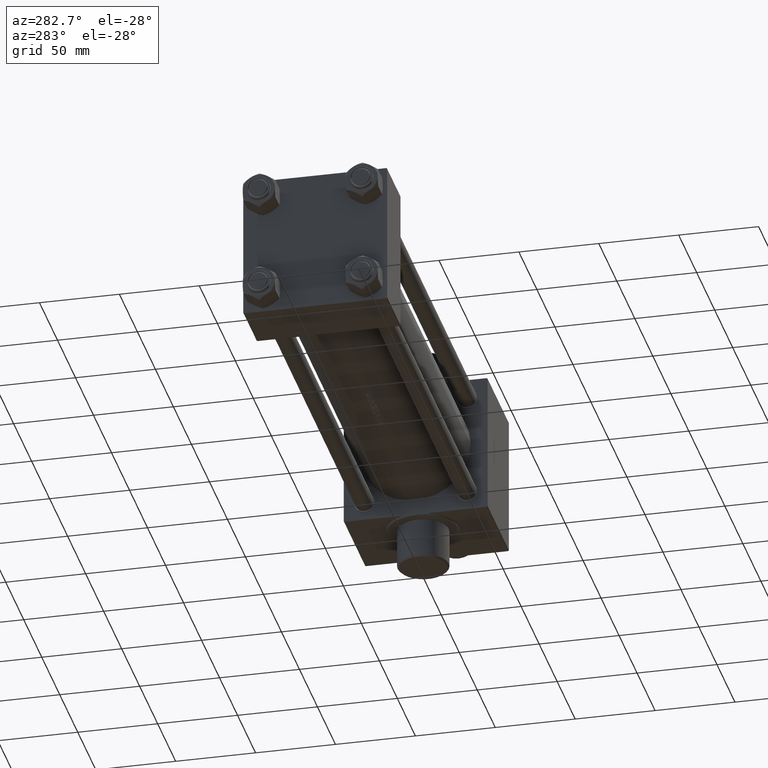
[diagram: clean part render]
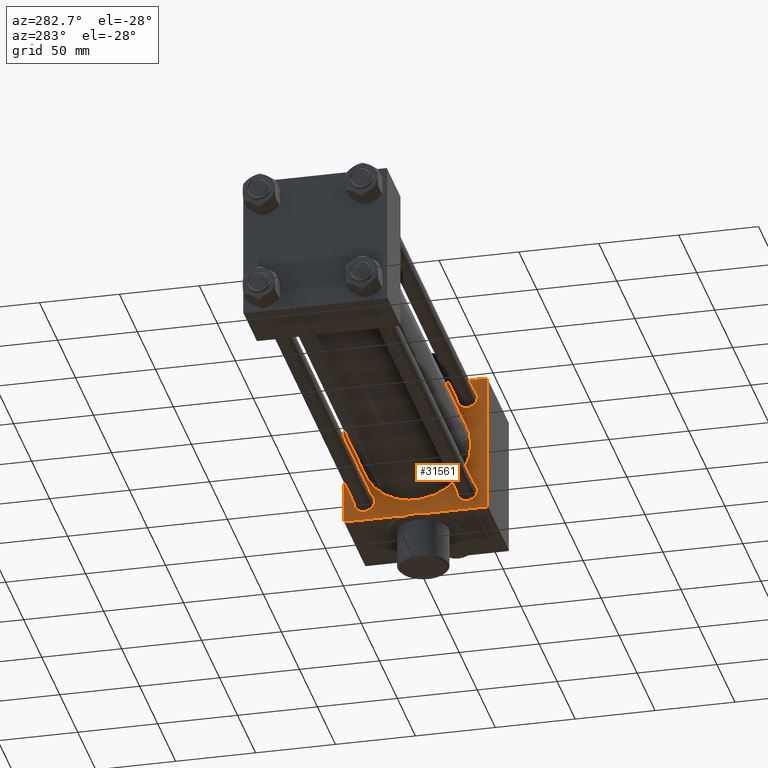
[diagram: same view with one face highlighted and labeled with its STEP entity id]
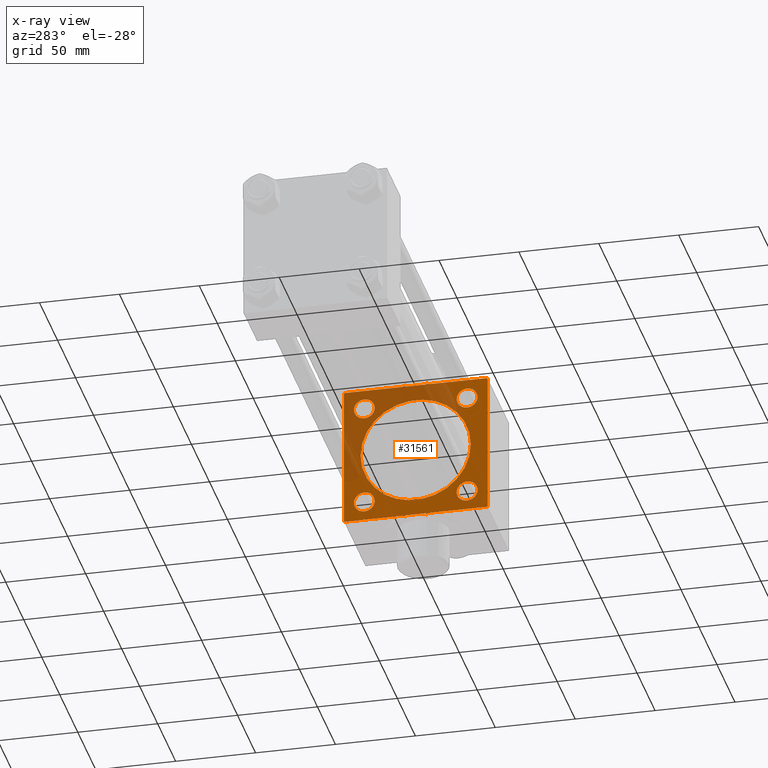
[diagram: x-ray of the same camera — body ghosted, the highlighted face saturated]
A machine part, auxiliary view. The second image highlights one B-rep face of the part: STEP entity #31561.
The next image is the same camera in x-ray: the body ghosted, the highlighted face saturated — about 36% of this face is hidden behind the body in this view.
In plain terms, the highlighted planar face has unit normal (-1, 0, -0).
Its self-contained STEP definition (entity closure, byte-faithful):
#37 = VERTEX_POINT ( 'NONE', #5837 ) ;
#326 = DIRECTION ( 'NONE',  ( 0.000000000000000000, 0.000000000000000000, -1.000000000000000000 ) ) ;
#445 = ORIENTED_EDGE ( 'NONE', *, *, #42361, .T. ) ;
#618 = DIRECTION ( 'NONE',  ( 1.000000000000000000, -0.000000000000000000, 0.000000000000000000 ) ) ;
#850 = VECTOR ( 'NONE', #15854, 1000.000000000000000 ) ;
#1042 = CARTESIAN_POINT ( 'NONE',  ( 278.9999999999998863, 45.36865640296358038, 6.581045208820103909 ) ) ;
#1112 = EDGE_CURVE ( 'NONE', #5918, #2435, #24346, .T. ) ;
#1119 = VERTEX_POINT ( 'NONE', #9830 ) ;
#1140 = CARTESIAN_POINT ( 'NONE',  ( 278.9999999999999432, -3.469446951953614189E-15, 0.000000000000000000 ) ) ;
#1150 = VERTEX_POINT ( 'NONE', #6245 ) ;
#1161 = CARTESIAN_POINT ( 'NONE',  ( 278.9999999999999432, 45.50000000000000000, -6.557438524301979932 ) ) ;
#1234 = ORIENTED_EDGE ( 'NONE', *, *, #36797, .T. ) ;
#1264 = CARTESIAN_POINT ( 'NONE',  ( 278.9999999999999432, 45.36808282792672031, -6.581323621460090756 ) ) ;
#1278 = CARTESIAN_POINT ( 'NONE',  ( 279.0000000000000000, 44.75568168226515553, 7.575263360223996933 ) ) ;
#1376 = B_SPLINE_CURVE_WITH_KNOTS ( 'NONE', 3,
 ( #29278, #14056, #3572, #14514, #40431, #32835, #10499, #7844, #14759, #10722, #43530, #7147, #21666, #36169 ),
 .UNSPECIFIED., .F., .F.,
 ( 4, 2, 2, 2, 2, 2, 4 ),
 ( 0.000000000000000000, 0.0001986455132052242819, 0.0003972910264104485638, 0.0007945820528208971277, 0.001589164105641785148, 0.002383746158462673060, 0.003178328211283561189 ),
 .UNSPECIFIED. ) ;
#1661 = LINE ( 'NONE', #16199, #11999 ) ;
#1811 = ORIENTED_EDGE ( 'NONE', *, *, #30429, .T. ) ;
#2133 = VECTOR ( 'NONE', #18325, 1000.000000000000000 ) ;
#2262 = DIRECTION ( 'NONE',  ( 1.000000000000000000, -0.000000000000000000, 0.000000000000000000 ) ) ;
#2435 = VERTEX_POINT ( 'NONE', #12577 ) ;
#2436 = DIRECTION ( 'NONE',  ( -0.000000000000000000, 0.7071067811865426878, 0.7071067811865524577 ) ) ;
#2456 = EDGE_LOOP ( 'NONE', ( #41492, #32992 ) ) ;
#2621 = CARTESIAN_POINT ( 'NONE',  ( 278.9999999999999432, 32.14999999999999147, -32.15000000000000568 ) ) ;
#2631 = EDGE_CURVE ( 'NONE', #37, #19912, #32376, .T. ) ;
#2777 = ORIENTED_EDGE ( 'NONE', *, *, #13322, .T. ) ;
#2854 = CIRCLE ( 'NONE', #9730, 6.499999999999999112 ) ;
#3489 = DIRECTION ( 'NONE',  ( 0.000000000000000000, -0.7071067811865474617, 0.7071067811865474617 ) ) ;
#3572 = CARTESIAN_POINT ( 'NONE',  ( 278.9999999999998863, -45.36808282792671321, 6.581323621460090756 ) ) ;
#3745 = LINE ( 'NONE', #14691, #23883 ) ;
#3839 = CARTESIAN_POINT ( 'NONE',  ( 278.9999999999999432, -44.49999999999999289, 44.99999999999999289 ) ) ;
#3857 = CARTESIAN_POINT ( 'NONE',  ( 278.9999999999999432, 32.14999999999999147, 32.15000000000000568 ) ) ;
#4373 = CARTESIAN_POINT ( 'NONE',  ( 278.9999999999998863, 44.58058725839543968, -8.337797870444370929 ) ) ;
#4461 = CARTESIAN_POINT ( 'NONE',  ( 278.9999999999999432, 32.14999999999999147, 25.65000000000000213 ) ) ;
#4622 = CARTESIAN_POINT ( 'NONE',  ( 279.0000000000000000, 45.25653734397380390, 6.652224673615339867 ) ) ;
#5082 = VERTEX_POINT ( 'NONE', #15773 ) ;
#5382 = VERTEX_POINT ( 'NONE', #32944 ) ;
#5400 = CARTESIAN_POINT ( 'NONE',  ( 278.9999999999999432, -45.43268042392767114, -6.557438524301983485 ) ) ;
#5556 = EDGE_CURVE ( 'NONE', #21462, #25092, #26190, .T. ) ;
#5837 = CARTESIAN_POINT ( 'NONE',  ( 278.9999999999999432, 44.50000000000000000, 9.380831519646873673 ) ) ;
#5873 = ORIENTED_EDGE ( 'NONE', *, *, #14531, .T. ) ;
#5918 = VERTEX_POINT ( 'NONE', #39363 ) ;
#6245 = CARTESIAN_POINT ( 'NONE',  ( 278.9999999999999432, -44.49999999999999289, 9.380831519646866568 ) ) ;
#6501 = DIRECTION ( 'NONE',  ( 1.000000000000000000, -0.000000000000000000, 0.000000000000000000 ) ) ;
#6729 = VERTEX_POINT ( 'NONE', #37723 ) ;
#6923 = CARTESIAN_POINT ( 'NONE',  ( 278.9999999999999432, 44.50000000000000711, 44.50000000000000711 ) ) ;
#7147 = CARTESIAN_POINT ( 'NONE',  ( 278.9999999999999432, -44.51692652152446783, 8.856014820355120776 ) ) ;
#7485 = CARTESIAN_POINT ( 'NONE',  ( 278.9999999999999432, 44.50000000000000000, 45.00000000000000000 ) ) ;
#7494 = ORIENTED_EDGE ( 'NONE', *, *, #42714, .T. ) ;
#7844 = CARTESIAN_POINT ( 'NONE',  ( 279.0000000000000000, -44.83801738405708903, 7.319499654176396142 ) ) ;
#8200 = EDGE_LOOP ( 'NONE', ( #17047, #25629, #30434, #18394, #26618, #11063, #43742, #7494, #12609, #37977, #38629, #1811, #2777, #45229, #21129, #445, #16335, #1234, #42162, #24143 ) ) ;
#8266 = CARTESIAN_POINT ( 'NONE',  ( 279.0000000000000000, -45.07793109108250462, -6.850088651197687284 ) ) ;
#8351 = EDGE_CURVE ( 'NONE', #36780, #28571, #35441, .T. ) ;
#8568 = CARTESIAN_POINT ( 'NONE',  ( 278.9999999999999432, -3.469446951953614189E-15, 0.000000000000000000 ) ) ;
#8666 = VECTOR ( 'NONE', #15218, 1000.000000000000000 ) ;
#8750 = CARTESIAN_POINT ( 'NONE',  ( 278.9999999999999432, -44.62692949418486421, -8.082000725711418809 ) ) ;
#8921 = LINE ( 'NONE', #22713, #30698 ) ;
#9263 = LINE ( 'NONE', #30676, #40126 ) ;
#9722 = ORIENTED_EDGE ( 'NONE', *, *, #22383, .T. ) ;
#9730 = AXIS2_PLACEMENT_3D ( 'NONE', #3857, #6501, #32423 ) ;
#9821 = VERTEX_POINT ( 'NONE', #10568 ) ;
#9830 = CARTESIAN_POINT ( 'NONE',  ( 278.9999999999999432, -32.14999999999997726, -38.65000000000001990 ) ) ;
#9846 = CARTESIAN_POINT ( 'NONE',  ( 278.9999999999999432, -32.14999999999997726, 38.65000000000002700 ) ) ;
#10284 = AXIS2_PLACEMENT_3D ( 'NONE', #2621, #17371, #42593 ) ;
#10499 = CARTESIAN_POINT ( 'NONE',  ( 279.0000000000000000, -45.01107320688775104, 6.966081309229838148 ) ) ;
#10533 = EDGE_CURVE ( 'NONE', #22413, #36922, #31402, .T. ) ;
#10568 = CARTESIAN_POINT ( 'NONE',  ( 278.9999999999999432, 45.49999999999999289, -6.557438524301986149 ) ) ;
#10722 = CARTESIAN_POINT ( 'NONE',  ( 279.0000000000000000, -44.62712411302558024, 8.080766227686606129 ) ) ;
#10748 = LINE ( 'NONE', #3839, #18632 ) ;
#10917 = DIRECTION ( 'NONE',  ( -0.000000000000000000, 0.000000000000000000, 1.000000000000000000 ) ) ;
#11004 = EDGE_CURVE ( 'NONE', #25694, #40679, #34487, .T. ) ;
#11063 = ORIENTED_EDGE ( 'NONE', *, *, #14239, .F. ) ;
#11389 = FACE_BOUND ( 'NONE', #39335, .T. ) ;
#11439 = CARTESIAN_POINT ( 'NONE',  ( 278.9999999999999432, 44.50000000000000000, 45.00000000000000000 ) ) ;
#11526 = CARTESIAN_POINT ( 'NONE',  ( 279.0000000000000000, 44.83690277754492115, 7.321717774704596948 ) ) ;
#11596 = CARTESIAN_POINT ( 'NONE',  ( 279.0000000000000000, -45.36865640296361590, -6.581045208820098580 ) ) ;
#11754 = CARTESIAN_POINT ( 'NONE',  ( 278.9999999999999432, 44.62712411302556603, -8.080766227686584813 ) ) ;
#11890 = LINE ( 'NONE', #1161, #2133 ) ;
#11954 = DIRECTION ( 'NONE',  ( 1.000000000000000000, -0.000000000000000000, 0.000000000000000000 ) ) ;
#11999 = VECTOR ( 'NONE', #30715, 1000.000000000000000 ) ;
#12001 = EDGE_CURVE ( 'NONE', #5382, #32707, #35400, .T. ) ;
#12075 = CARTESIAN_POINT ( 'NONE',  ( 278.9999999999999432, -44.75568168226515553, -7.575263360223986275 ) ) ;
#12521 = CARTESIAN_POINT ( 'NONE',  ( 278.9999999999999432, -44.49999999999999289, -6.557438524301993255 ) ) ;
#12544 = CARTESIAN_POINT ( 'NONE',  ( 278.9999999999999432, -45.49999999999999289, -6.557438524301987037 ) ) ;
#12577 = CARTESIAN_POINT ( 'NONE',  ( 278.9999999999999432, -44.00000000000000000, 44.99999999999999289 ) ) ;
#12595 = CARTESIAN_POINT ( 'NONE',  ( 278.9999999999999432, -3.469446951953614189E-15, 34.49999999999999289 ) ) ;
#12609 = ORIENTED_EDGE ( 'NONE', *, *, #25173, .F. ) ;
#12899 = CARTESIAN_POINT ( 'NONE',  ( 278.9999999999999432, 32.14999999999999147, 32.15000000000000568 ) ) ;
#12950 = DIRECTION ( 'NONE',  ( 0.000000000000000000, -1.000000000000000000, -1.559302000878028960E-16 ) ) ;
#12953 = DIRECTION ( 'NONE',  ( 0.000000000000000000, 0.000000000000000000, -1.000000000000000000 ) ) ;
#13320 = EDGE_LOOP ( 'NONE', ( #14078, #24785 ) ) ;
#13322 = EDGE_CURVE ( 'NONE', #26098, #37, #21773, .T. ) ;
#14056 = CARTESIAN_POINT ( 'NONE',  ( 278.9999999999999432, -45.43253945949933126, 6.557438524301979932 ) ) ;
#14078 = ORIENTED_EDGE ( 'NONE', *, *, #29838, .T. ) ;
#14239 = EDGE_CURVE ( 'NONE', #33963, #29499, #10748, .T. ) ;
#14297 = DIRECTION ( 'NONE',  ( 0.000000000000000000, -1.000000000000000000, -7.796510004390144799E-17 ) ) ;
#14433 = CARTESIAN_POINT ( 'NONE',  ( 278.9999999999999432, -44.49999999999999289, -44.49999999999999289 ) ) ;
#14514 = CARTESIAN_POINT ( 'NONE',  ( 278.9999999999998295, -45.25622035137814692, 6.652512328430220556 ) ) ;
#14531 = EDGE_CURVE ( 'NONE', #28063, #21125, #30788, .T. ) ;
#14691 = CARTESIAN_POINT ( 'NONE',  ( 278.9999999999999432, 44.49999999999999289, -44.49999999999999289 ) ) ;
#14759 = CARTESIAN_POINT ( 'NONE',  ( 279.0000000000000000, -44.75666825910949598, 7.571853253159832597 ) ) ;
#14793 = CARTESIAN_POINT ( 'NONE',  ( 278.9999999999999432, -45.49999999999999289, -6.557438524301987037 ) ) ;
#14889 = CARTESIAN_POINT ( 'NONE',  ( 278.9999999999999432, 44.50000000000000000, 9.380831519646873673 ) ) ;
#15015 = VECTOR ( 'NONE', #17679, 1000.000000000000000 ) ;
#15192 = FACE_BOUND ( 'NONE', #2456, .T. ) ;
#15218 = DIRECTION ( 'NONE',  ( 0.000000000000000000, 1.000000000000000000, -8.673617379884036705E-17 ) ) ;
#15711 = DIRECTION ( 'NONE',  ( 1.000000000000000000, -0.000000000000000000, 0.000000000000000000 ) ) ;
#15733 = AXIS2_PLACEMENT_3D ( 'NONE', #40970, #11954, #30032 ) ;
#15773 = CARTESIAN_POINT ( 'NONE',  ( 278.9999999999999432, 44.00000000000000000, 45.00000000000000000 ) ) ;
#15797 = CARTESIAN_POINT ( 'NONE',  ( 278.9999999999999432, 44.50000000000000000, -9.380831519646831040 ) ) ;
#15812 = CARTESIAN_POINT ( 'NONE',  ( 279.0000000000000000, 45.01178648147978123, 6.964653759846180847 ) ) ;
#15854 = DIRECTION ( 'NONE',  ( 0.000000000000000000, -1.000000000000000000, -8.673617379884036705E-17 ) ) ;
#16175 = CARTESIAN_POINT ( 'NONE',  ( 278.9999999999999432, -32.14999999999997726, -32.15000000000001279 ) ) ;
#16199 = CARTESIAN_POINT ( 'NONE',  ( 278.9999999999999432, -44.49999999999999289, 44.99999999999999289 ) ) ;
#16329 = DIRECTION ( 'NONE',  ( 1.000000000000000000, -0.000000000000000000, 0.000000000000000000 ) ) ;
#16335 = ORIENTED_EDGE ( 'NONE', *, *, #25504, .F. ) ;
#16582 = AXIS2_PLACEMENT_3D ( 'NONE', #12899, #27418, #27898 ) ;
#16621 = ORIENTED_EDGE ( 'NONE', *, *, #25120, .T. ) ;
#16683 = CARTESIAN_POINT ( 'NONE',  ( 278.9999999999999432, -44.49999999999999289, -6.557438524301993255 ) ) ;
#17047 = ORIENTED_EDGE ( 'NONE', *, *, #22099, .T. ) ;
#17371 = DIRECTION ( 'NONE',  ( 1.000000000000000000, -0.000000000000000000, 0.000000000000000000 ) ) ;
#17630 = B_SPLINE_CURVE_WITH_KNOTS ( 'NONE', 3,
 ( #33878, #26026, #1264, #36728, #22458, #34117, #36956, #25796, #44339, #11754, #4373, #18901, #23176, #15797 ),
 .UNSPECIFIED., .F., .F.,
 ( 4, 2, 2, 2, 2, 2, 4 ),
 ( 7.152448122690996019E-18, 0.0001986455132052271822, 0.0003972910264104472086, 0.0007945820528208853099, 0.001589164105641768234, 0.002383746158462647907, 0.003178328211283528229 ),
 .UNSPECIFIED. ) ;
#17679 = DIRECTION ( 'NONE',  ( 0.000000000000000000, 0.000000000000000000, -1.000000000000000000 ) ) ;
#17801 = DIRECTION ( 'NONE',  ( -0.000000000000000000, -0.7071067811865474617, -0.7071067811865474617 ) ) ;
#17829 = FACE_OUTER_BOUND ( 'NONE', #8200, .T. ) ;
#18325 = DIRECTION ( 'NONE',  ( -0.000000000000000000, -1.000000000000000000, 8.673617379884036705E-17 ) ) ;
#18391 = CARTESIAN_POINT ( 'NONE',  ( 278.9999999999999432, 44.50000000000000000, 44.50000000000000000 ) ) ;
#18394 = ORIENTED_EDGE ( 'NONE', *, *, #8351, .T. ) ;
#18538 = VERTEX_POINT ( 'NONE', #45313 ) ;
#18590 = DIRECTION ( 'NONE',  ( 0.000000000000000000, 0.7071067811865474617, -0.7071067811865474617 ) ) ;
#18632 = VECTOR ( 'NONE', #21699, 1000.000000000000000 ) ;
#18901 = CARTESIAN_POINT ( 'NONE',  ( 279.0000000000000000, 44.51692652152448204, -8.856014820355099459 ) ) ;
#19018 = DIRECTION ( 'NONE',  ( 1.000000000000000000, 0.000000000000000000, 0.000000000000000000 ) ) ;
#19032 = CARTESIAN_POINT ( 'NONE',  ( 278.9999999999999432, 44.49999999999999289, 6.557438524301993255 ) ) ;
#19220 = CARTESIAN_POINT ( 'NONE',  ( 278.9999999999998863, -44.50000000000000000, -9.116900065487357097 ) ) ;
#19308 = CARTESIAN_POINT ( 'NONE',  ( 278.9999999999999432, 7.555845051047534515E-16, -34.49999999999999289 ) ) ;
#19395 = CARTESIAN_POINT ( 'NONE',  ( 278.9999999999999432, 44.51696393002922747, 8.855752037658458420 ) ) ;
#19673 = DIRECTION ( 'NONE',  ( 0.000000000000000000, 0.000000000000000000, 1.000000000000000000 ) ) ;
#19826 = EDGE_LOOP ( 'NONE', ( #33248, #43397 ) ) ;
#19912 = VERTEX_POINT ( 'NONE', #28885 ) ;
#20817 = AXIS2_PLACEMENT_3D ( 'NONE', #8568, #34027, #26416 ) ;
#20881 = ORIENTED_EDGE ( 'NONE', *, *, #26267, .T. ) ;
#21109 = EDGE_CURVE ( 'NONE', #36780, #32707, #1661, .T. ) ;
#21125 = VERTEX_POINT ( 'NONE', #23812 ) ;
#21129 = ORIENTED_EDGE ( 'NONE', *, *, #42106, .F. ) ;
#21462 = VERTEX_POINT ( 'NONE', #41112 ) ;
#21666 = CARTESIAN_POINT ( 'NONE',  ( 278.9999999999999432, -44.49999999999998579, 9.117227998549772394 ) ) ;
#21699 = DIRECTION ( 'NONE',  ( 0.000000000000000000, 0.000000000000000000, -1.000000000000000000 ) ) ;
#21773 = LINE ( 'NONE', #7485, #26197 ) ;
#22099 = EDGE_CURVE ( 'NONE', #44562, #5382, #23428, .T. ) ;
#22138 = CARTESIAN_POINT ( 'NONE',  ( 278.9999999999999432, 44.50000000000000000, 45.00000000000000000 ) ) ;
#22379 = DIRECTION ( 'NONE',  ( 0.000000000000000000, 0.000000000000000000, -1.000000000000000000 ) ) ;
#22383 = EDGE_CURVE ( 'NONE', #21125, #28063, #31668, .T. ) ;
#22413 = VERTEX_POINT ( 'NONE', #44299 ) ;
#22458 = CARTESIAN_POINT ( 'NONE',  ( 279.0000000000000568, 45.20740983511807087, -6.699371471872149542 ) ) ;
#22713 = CARTESIAN_POINT ( 'NONE',  ( 278.9999999999999432, 44.50000000000000000, 45.00000000000000000 ) ) ;
#22788 = VECTOR ( 'NONE', #2436, 1000.000000000000000 ) ;
#22789 = VECTOR ( 'NONE', #18590, 1000.000000000000114 ) ;
#22817 = DIRECTION ( 'NONE',  ( 0.000000000000000000, 0.000000000000000000, -1.000000000000000000 ) ) ;
#22949 = CARTESIAN_POINT ( 'NONE',  ( 278.9999999999999432, 44.62692949418487842, 8.082000725711431244 ) ) ;
#23176 = CARTESIAN_POINT ( 'NONE',  ( 278.9999999999999432, 44.50000000000000711, -9.117227998549759960 ) ) ;
#23235 = CARTESIAN_POINT ( 'NONE',  ( 278.9999999999999432, -32.14999999999997726, -32.15000000000001279 ) ) ;
#23428 = LINE ( 'NONE', #38636, #35464 ) ;
#23812 = CARTESIAN_POINT ( 'NONE',  ( 278.9999999999999432, 32.14999999999999147, -25.64999999999999858 ) ) ;
#23868 = VECTOR ( 'NONE', #3489, 1000.000000000000114 ) ;
#23883 = VECTOR ( 'NONE', #17801, 1000.000000000000114 ) ;
#24143 = ORIENTED_EDGE ( 'NONE', *, *, #43102, .T. ) ;
#24346 = LINE ( 'NONE', #42422, #22788 ) ;
#24586 = AXIS2_PLACEMENT_3D ( 'NONE', #31297, #2262, #24872 ) ;
#24785 = ORIENTED_EDGE ( 'NONE', *, *, #10533, .T. ) ;
#24872 = DIRECTION ( 'NONE',  ( 0.000000000000000000, 0.000000000000000000, 1.000000000000000000 ) ) ;
#25092 = VERTEX_POINT ( 'NONE', #35533 ) ;
#25120 = EDGE_CURVE ( 'NONE', #44028, #44846, #2854, .T. ) ;
#25173 = EDGE_CURVE ( 'NONE', #5918, #1150, #43124, .T. ) ;
#25198 = PLANE ( 'NONE',  #40294 ) ;
#25504 = EDGE_CURVE ( 'NONE', #9821, #42589, #11890, .T. ) ;
#25629 = ORIENTED_EDGE ( 'NONE', *, *, #12001, .T. ) ;
#25694 = VERTEX_POINT ( 'NONE', #12595 ) ;
#25750 = EDGE_CURVE ( 'NONE', #6729, #33963, #9263, .T. ) ;
#25796 = CARTESIAN_POINT ( 'NONE',  ( 278.9999999999998863, 44.83801738405707482, -7.319499654176386372 ) ) ;
#25811 = CARTESIAN_POINT ( 'NONE',  ( 278.9999999999999432, 45.49999999999999289, 6.557438524301980820 ) ) ;
#26026 = CARTESIAN_POINT ( 'NONE',  ( 278.9999999999999432, 45.43253945949934547, -6.557438524301979932 ) ) ;
#26098 = VERTEX_POINT ( 'NONE', #18391 ) ;
#26190 = LINE ( 'NONE', #11439, #40480 ) ;
#26197 = VECTOR ( 'NONE', #326, 1000.000000000000000 ) ;
#26267 = EDGE_CURVE ( 'NONE', #44846, #44028, #37068, .T. ) ;
#26352 = CARTESIAN_POINT ( 'NONE',  ( 278.9999999999999432, -44.58051835131164609, -8.338317081430654198 ) ) ;
#26416 = DIRECTION ( 'NONE',  ( 0.000000000000000000, 0.000000000000000000, -1.000000000000000000 ) ) ;
#26523 = CARTESIAN_POINT ( 'NONE',  ( 278.9999999999998863, 45.43268042392767114, 6.557438524301986149 ) ) ;
#26588 = CARTESIAN_POINT ( 'NONE',  ( 279.0000000000000000, -44.83690277754492115, -7.321717774704588955 ) ) ;
#26618 = ORIENTED_EDGE ( 'NONE', *, *, #32731, .F. ) ;
#27062 = CARTESIAN_POINT ( 'NONE',  ( 278.9999999999999432, -44.49999999999999289, -9.380831519646823935 ) ) ;
#27313 = CIRCLE ( 'NONE', #31113, 6.500000000000005329 ) ;
#27322 = EDGE_CURVE ( 'NONE', #5082, #2435, #46878, .T. ) ;
#27418 = DIRECTION ( 'NONE',  ( 1.000000000000000000, -0.000000000000000000, 0.000000000000000000 ) ) ;
#27700 = CARTESIAN_POINT ( 'NONE',  ( 278.9999999999999432, 44.49999999999999289, 6.557438524301993255 ) ) ;
#27898 = DIRECTION ( 'NONE',  ( 0.000000000000000000, 0.000000000000000000, 1.000000000000000000 ) ) ;
#28063 = VERTEX_POINT ( 'NONE', #28547 ) ;
#28457 = CIRCLE ( 'NONE', #35289, 6.500000000000005329 ) ;
#28547 = CARTESIAN_POINT ( 'NONE',  ( 278.9999999999999432, 32.14999999999999147, -38.65000000000001279 ) ) ;
#28571 = VERTEX_POINT ( 'NONE', #14793 ) ;
#28885 = CARTESIAN_POINT ( 'NONE',  ( 278.9999999999999432, 45.49999999999999289, 6.557438524301980820 ) ) ;
#28896 = EDGE_CURVE ( 'NONE', #40679, #25694, #30339, .T. ) ;
#28996 = CIRCLE ( 'NONE', #38098, 6.500000000000005329 ) ;
#29278 = CARTESIAN_POINT ( 'NONE',  ( 278.9999999999999432, -45.49999999999999289, 6.557438524301985261 ) ) ;
#29499 = VERTEX_POINT ( 'NONE', #16683 ) ;
#29704 = CARTESIAN_POINT ( 'NONE',  ( 278.9999999999999432, 0.000000000000000000, 0.000000000000000000 ) ) ;
#29838 = EDGE_CURVE ( 'NONE', #36922, #22413, #27313, .T. ) ;
#30032 = DIRECTION ( 'NONE',  ( 0.000000000000000000, 0.000000000000000000, 1.000000000000000000 ) ) ;
#30087 = CARTESIAN_POINT ( 'NONE',  ( 278.9999999999999432, 45.07793109108251173, 6.850088651197694389 ) ) ;
#30209 = LINE ( 'NONE', #19032, #8666 ) ;
#30277 = CARTESIAN_POINT ( 'NONE',  ( 278.9999999999999432, 44.49999999999999289, -6.557438524301991478 ) ) ;
#30339 = CIRCLE ( 'NONE', #36399, 34.49999999999999289 ) ;
#30429 = EDGE_CURVE ( 'NONE', #5082, #26098, #35951, .T. ) ;
#30434 = ORIENTED_EDGE ( 'NONE', *, *, #21109, .F. ) ;
#30501 = CARTESIAN_POINT ( 'NONE',  ( 278.9999999999999432, -44.49999999999999289, 6.557438524301991478 ) ) ;
#30623 = CARTESIAN_POINT ( 'NONE',  ( 278.9999999999998863, -45.01178648147978123, -6.964653759846172854 ) ) ;
#30676 = CARTESIAN_POINT ( 'NONE',  ( 278.9999999999999432, -45.49999999999999289, 6.557438524301979044 ) ) ;
#30698 = VECTOR ( 'NONE', #12953, 1000.000000000000000 ) ;
#30715 = DIRECTION ( 'NONE',  ( 0.000000000000000000, 0.000000000000000000, -1.000000000000000000 ) ) ;
#30788 = CIRCLE ( 'NONE', #10284, 6.500000000000005329 ) ;
#30866 = CARTESIAN_POINT ( 'NONE',  ( 278.9999999999999432, -45.25653734397379679, -6.652224673615330985 ) ) ;
#30914 = DIRECTION ( 'NONE',  ( -0.000000000000000000, 1.000000000000000000, 8.673617379884036705E-17 ) ) ;
#31113 = AXIS2_PLACEMENT_3D ( 'NONE', #36095, #618, #43453 ) ;
#31297 = CARTESIAN_POINT ( 'NONE',  ( 278.9999999999999432, -32.14999999999997726, 32.15000000000001279 ) ) ;
#31402 = CIRCLE ( 'NONE', #24586, 6.500000000000005329 ) ;
#31561 = ADVANCED_FACE ( 'NONE', ( #43492, #43968, #11389, #47063, #15192, #17829 ), #25198, .T. ) ;
#31668 = CIRCLE ( 'NONE', #15733, 6.500000000000005329 ) ;
#32376 = B_SPLINE_CURVE_WITH_KNOTS ( 'NONE', 3,
 ( #14889, #41260, #19395, #33411, #22949, #1278, #11526, #15812, #30087, #44590, #4622, #1042, #26523, #25811 ),
 .UNSPECIFIED., .F., .F.,
 ( 4, 2, 2, 2, 2, 2, 4 ),
 ( 1.734723475976807094E-17, 0.0007813465282946633695, 0.001562693056589309392, 0.002344039584883960293, 0.002734712849031290405, 0.002930049481104949824, 0.003125386113178609242 ),
 .UNSPECIFIED. ) ;
#32423 = DIRECTION ( 'NONE',  ( 0.000000000000000000, 0.000000000000000000, 1.000000000000000000 ) ) ;
#32707 = VERTEX_POINT ( 'NONE', #14433 ) ;
#32731 = EDGE_CURVE ( 'NONE', #29499, #28571, #33693, .T. ) ;
#32817 = EDGE_CURVE ( 'NONE', #18538, #1119, #28996, .T. ) ;
#32835 = CARTESIAN_POINT ( 'NONE',  ( 278.9999999999999432, -45.07822271710629991, 6.849809778337188959 ) ) ;
#32944 = CARTESIAN_POINT ( 'NONE',  ( 278.9999999999999432, -44.00000000000000000, -45.00000000000001421 ) ) ;
#32992 = ORIENTED_EDGE ( 'NONE', *, *, #28896, .T. ) ;
#33164 = CARTESIAN_POINT ( 'NONE',  ( 278.9999999999999432, -44.49999999999999289, -9.380831519646823935 ) ) ;
#33248 = ORIENTED_EDGE ( 'NONE', *, *, #32817, .T. ) ;
#33399 = CARTESIAN_POINT ( 'NONE',  ( 278.9999999999999432, 32.14999999999999147, 38.65000000000001279 ) ) ;
#33411 = CARTESIAN_POINT ( 'NONE',  ( 278.9999999999999432, 44.58051835131163187, 8.338317081430661304 ) ) ;
#33693 = LINE ( 'NONE', #12521, #850 ) ;
#33878 = CARTESIAN_POINT ( 'NONE',  ( 278.9999999999999432, 45.49999999999999289, -6.557438524301986149 ) ) ;
#33963 = VERTEX_POINT ( 'NONE', #30501 ) ;
#34027 = DIRECTION ( 'NONE',  ( 1.000000000000000000, 0.000000000000000000, 0.000000000000000000 ) ) ;
#34117 = CARTESIAN_POINT ( 'NONE',  ( 279.0000000000000000, 45.07822271710632123, -6.849809778337195176 ) ) ;
#34487 = CIRCLE ( 'NONE', #20817, 34.49999999999999289 ) ;
#35289 = AXIS2_PLACEMENT_3D ( 'NONE', #16175, #15711, #44946 ) ;
#35400 = LINE ( 'NONE', #35850, #23868 ) ;
#35441 = B_SPLINE_CURVE_WITH_KNOTS ( 'NONE', 3,
 ( #27062, #19220, #45119, #26352, #8750, #12075, #26588, #30623, #8266, #41089, #30866, #11596, #5400, #12544 ),
 .UNSPECIFIED., .F., .F.,
 ( 4, 2, 2, 2, 2, 2, 4 ),
 ( 1.734723475976807094E-17, 0.0007813465282946575148, 0.001562693056589297682, 0.002344039584883939910, 0.002734712849031266119, 0.002930049481104935512, 0.003125386113178604906 ),
 .UNSPECIFIED. ) ;
#35464 = VECTOR ( 'NONE', #12950, 1000.000000000000000 ) ;
#35533 = CARTESIAN_POINT ( 'NONE',  ( 278.9999999999999432, 44.50000000000000000, -44.49999999999997158 ) ) ;
#35850 = CARTESIAN_POINT ( 'NONE',  ( 278.9999999999999432, -44.50000000000000711, -44.50000000000000711 ) ) ;
#35894 = DIRECTION ( 'NONE',  ( -1.000000000000000000, 0.000000000000000000, -0.000000000000000000 ) ) ;
#35951 = LINE ( 'NONE', #6923, #22789 ) ;
#36095 = CARTESIAN_POINT ( 'NONE',  ( 278.9999999999999432, -32.14999999999997726, 32.15000000000001279 ) ) ;
#36169 = CARTESIAN_POINT ( 'NONE',  ( 278.9999999999999432, -44.49999999999999289, 9.380831519646866568 ) ) ;
#36399 = AXIS2_PLACEMENT_3D ( 'NONE', #1140, #19018, #22817 ) ;
#36728 = CARTESIAN_POINT ( 'NONE',  ( 278.9999999999999432, 45.25622035137817534, -6.652512328430224997 ) ) ;
#36780 = VERTEX_POINT ( 'NONE', #33164 ) ;
#36797 = EDGE_CURVE ( 'NONE', #9821, #21462, #17630, .T. ) ;
#36922 = VERTEX_POINT ( 'NONE', #9846 ) ;
#36956 = CARTESIAN_POINT ( 'NONE',  ( 279.0000000000000568, 45.01107320688775815, -6.966081309229839924 ) ) ;
#37068 = CIRCLE ( 'NONE', #16582, 6.499999999999999112 ) ;
#37723 = CARTESIAN_POINT ( 'NONE',  ( 278.9999999999999432, -45.49999999999999289, 6.557438524301985261 ) ) ;
#37977 = ORIENTED_EDGE ( 'NONE', *, *, #1112, .T. ) ;
#38098 = AXIS2_PLACEMENT_3D ( 'NONE', #23235, #16329, #19673 ) ;
#38629 = ORIENTED_EDGE ( 'NONE', *, *, #27322, .F. ) ;
#38636 = CARTESIAN_POINT ( 'NONE',  ( 278.9999999999999432, 44.50000000000000000, -45.00000000000000000 ) ) ;
#39333 = CARTESIAN_POINT ( 'NONE',  ( 278.9999999999999432, -44.49999999999999289, 44.99999999999999289 ) ) ;
#39335 = EDGE_LOOP ( 'NONE', ( #9722, #5873 ) ) ;
#39363 = CARTESIAN_POINT ( 'NONE',  ( 278.9999999999999432, -44.49999999999999289, 44.49999999999999289 ) ) ;
#40126 = VECTOR ( 'NONE', #30914, 1000.000000000000000 ) ;
#40294 = AXIS2_PLACEMENT_3D ( 'NONE', #29704, #35894, #10917 ) ;
#40431 = CARTESIAN_POINT ( 'NONE',  ( 279.0000000000000000, -45.20740983511806377, 6.699371471872143324 ) ) ;
#40480 = VECTOR ( 'NONE', #22379, 1000.000000000000000 ) ;
#40679 = VERTEX_POINT ( 'NONE', #19308 ) ;
#40970 = CARTESIAN_POINT ( 'NONE',  ( 278.9999999999999432, 32.14999999999999147, -32.15000000000000568 ) ) ;
#41089 = CARTESIAN_POINT ( 'NONE',  ( 278.9999999999999432, -45.20783812010877512, -6.698903196166571483 ) ) ;
#41112 = CARTESIAN_POINT ( 'NONE',  ( 278.9999999999999432, 44.50000000000000000, -9.380831519646831040 ) ) ;
#41260 = CARTESIAN_POINT ( 'NONE',  ( 279.0000000000000568, 44.50000000000001421, 9.116900065487373084 ) ) ;
#41492 = ORIENTED_EDGE ( 'NONE', *, *, #11004, .T. ) ;
#41676 = VECTOR ( 'NONE', #14297, 1000.000000000000000 ) ;
#41777 = CARTESIAN_POINT ( 'NONE',  ( 278.9999999999999432, 44.00000000000000000, -45.00000000000000000 ) ) ;
#42106 = EDGE_CURVE ( 'NONE', #44945, #19912, #30209, .T. ) ;
#42162 = ORIENTED_EDGE ( 'NONE', *, *, #5556, .T. ) ;
#42361 = EDGE_CURVE ( 'NONE', #44945, #42589, #8921, .T. ) ;
#42422 = CARTESIAN_POINT ( 'NONE',  ( 278.9999999999999432, -44.50000000000029132, 44.49999999999968026 ) ) ;
#42589 = VERTEX_POINT ( 'NONE', #30277 ) ;
#42593 = DIRECTION ( 'NONE',  ( 0.000000000000000000, 0.000000000000000000, 1.000000000000000000 ) ) ;
#42714 = EDGE_CURVE ( 'NONE', #6729, #1150, #1376, .T. ) ;
#43102 = EDGE_CURVE ( 'NONE', #25092, #44562, #3745, .T. ) ;
#43124 = LINE ( 'NONE', #39333, #15015 ) ;
#43397 = ORIENTED_EDGE ( 'NONE', *, *, #43839, .T. ) ;
#43453 = DIRECTION ( 'NONE',  ( 0.000000000000000000, 0.000000000000000000, 1.000000000000000000 ) ) ;
#43492 = FACE_BOUND ( 'NONE', #13320, .T. ) ;
#43530 = CARTESIAN_POINT ( 'NONE',  ( 278.9999999999998863, -44.58058725839543257, 8.337797870444388693 ) ) ;
#43742 = ORIENTED_EDGE ( 'NONE', *, *, #25750, .F. ) ;
#43839 = EDGE_CURVE ( 'NONE', #1119, #18538, #28457, .T. ) ;
#43849 = EDGE_LOOP ( 'NONE', ( #20881, #16621 ) ) ;
#43968 = FACE_BOUND ( 'NONE', #43849, .T. ) ;
#44028 = VERTEX_POINT ( 'NONE', #4461 ) ;
#44299 = CARTESIAN_POINT ( 'NONE',  ( 278.9999999999999432, -32.14999999999997726, 25.65000000000000213 ) ) ;
#44339 = CARTESIAN_POINT ( 'NONE',  ( 279.0000000000000000, 44.75666825910950308, -7.571853253159821051 ) ) ;
#44562 = VERTEX_POINT ( 'NONE', #41777 ) ;
#44590 = CARTESIAN_POINT ( 'NONE',  ( 278.9999999999998863, 45.20783812010876090, 6.698903196166581253 ) ) ;
#44846 = VERTEX_POINT ( 'NONE', #33399 ) ;
#44945 = VERTEX_POINT ( 'NONE', #27700 ) ;
#44946 = DIRECTION ( 'NONE',  ( 0.000000000000000000, 0.000000000000000000, 1.000000000000000000 ) ) ;
#45119 = CARTESIAN_POINT ( 'NONE',  ( 279.0000000000000000, -44.51696393002922747, -8.855752037658447762 ) ) ;
#45229 = ORIENTED_EDGE ( 'NONE', *, *, #2631, .T. ) ;
#45313 = CARTESIAN_POINT ( 'NONE',  ( 278.9999999999999432, -32.14999999999997726, -25.65000000000000568 ) ) ;
#46878 = LINE ( 'NONE', #22138, #41676 ) ;
#47063 = FACE_BOUND ( 'NONE', #19826, .T. ) ;